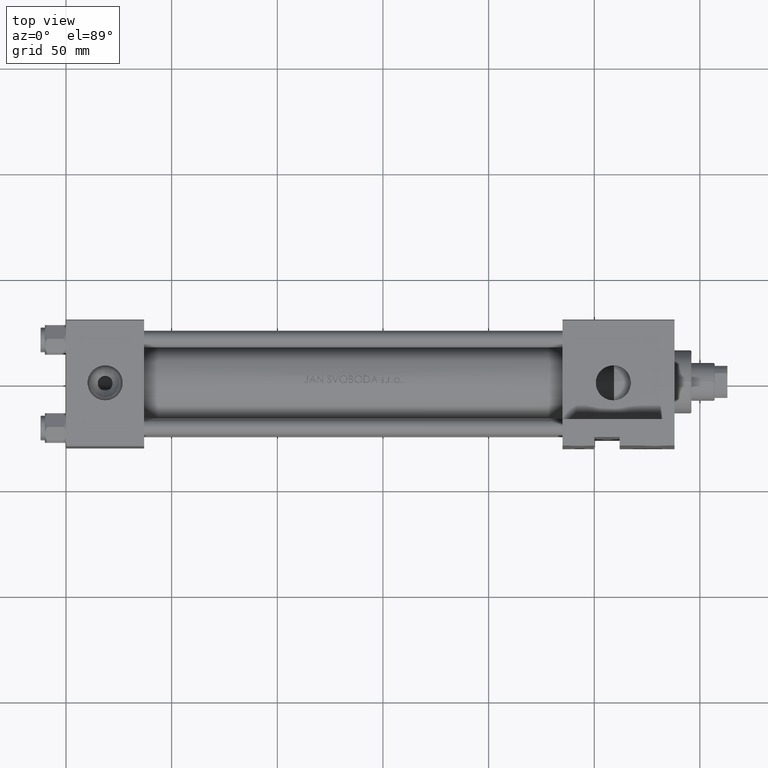
[diagram: clean part render]
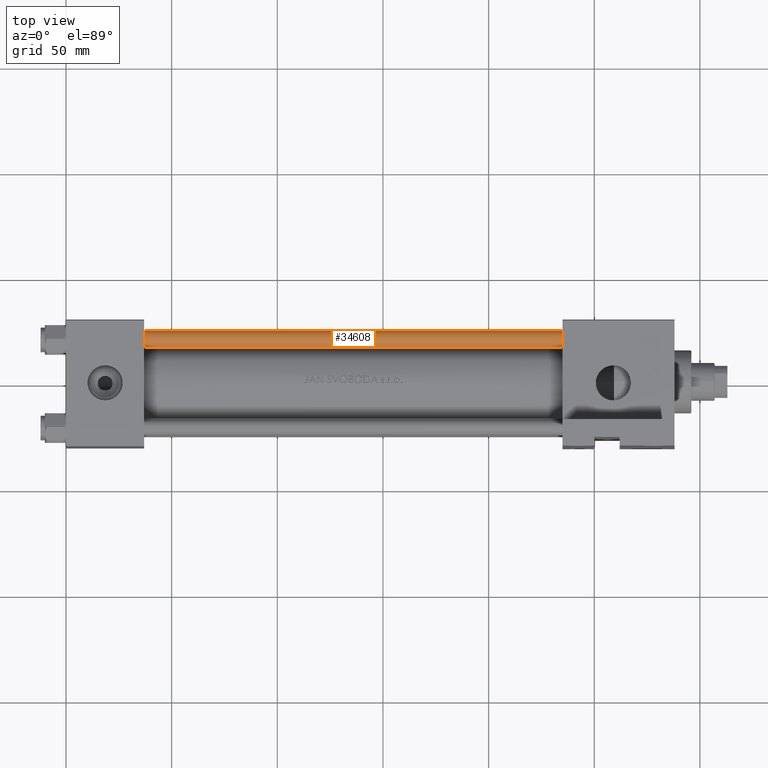
[diagram: same view with one face highlighted and labeled with its STEP entity id]
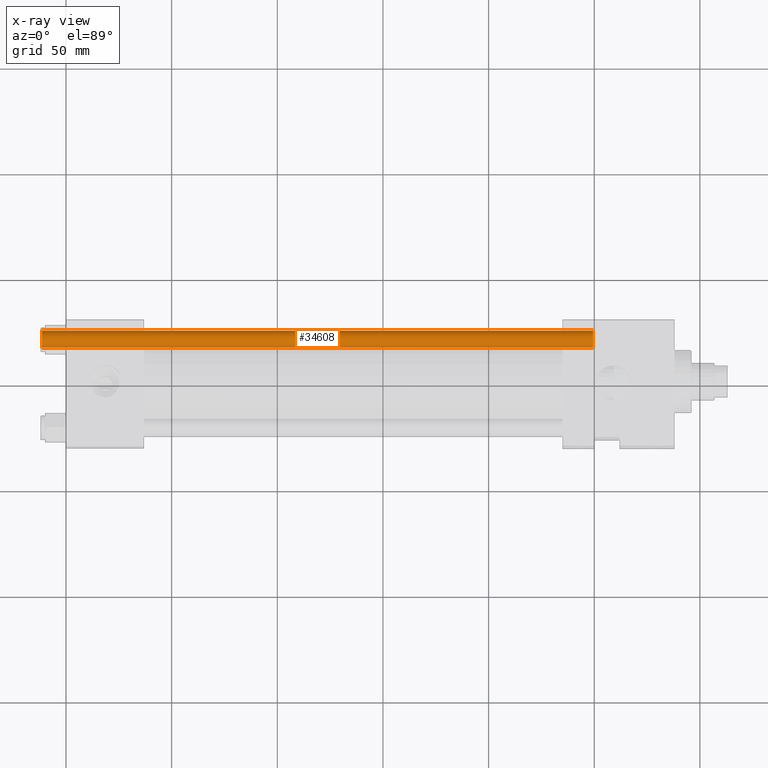
[diagram: x-ray of the same camera — body ghosted, the highlighted face saturated]
A machine part, top view. The second image highlights one B-rep face of the part: STEP entity #34608.
The next image is the same camera in x-ray: the body ghosted, the highlighted face saturated — about 0% of this face is hidden behind the body in this view.
In plain terms, the highlighted cylindrical surface (edge-blend (fillet) strip) has radius 4 mm, axis along (1, -0, 0).
Its self-contained STEP definition (entity closure, byte-faithful):
#402 = EDGE_CURVE ( 'NONE', #30187, #19255, #19753, .T. ) ;
#1052 = DIRECTION ( 'NONE',  ( 1.000000000000000000, 0.000000000000000000, 0.000000000000000000 ) ) ;
#3127 = CARTESIAN_POINT ( 'NONE',  ( 4.000000000000000000, 4.898587196589412829E-16, 261.5000000000000000 ) ) ;
#4140 = DIRECTION ( 'NONE',  ( -0.000000000000000000, -0.000000000000000000, 1.000000000000000000 ) ) ;
#4757 = CARTESIAN_POINT ( 'NONE',  ( 0.000000000000000000, 0.000000000000000000, 261.5000000000000000 ) ) ;
#5008 = VERTEX_POINT ( 'NONE', #26827 ) ;
#6126 = DIRECTION ( 'NONE',  ( -1.000000000000000000, 0.000000000000000000, 0.000000000000000000 ) ) ;
#6834 = LINE ( 'NONE', #21864, #14240 ) ;
#7954 = ORIENTED_EDGE ( 'NONE', *, *, #20651, .T. ) ;
#8916 = ORIENTED_EDGE ( 'NONE', *, *, #402, .F. ) ;
#9171 = AXIS2_PLACEMENT_3D ( 'NONE', #37938, #4140, #23377 ) ;
#12328 = CARTESIAN_POINT ( 'NONE',  ( 4.000000000000000000, 4.898587196589412829E-16, 0.5000000000000559552 ) ) ;
#13538 = FACE_OUTER_BOUND ( 'NONE', #16314, .T. ) ;
#13633 = ORIENTED_EDGE ( 'NONE', *, *, #33531, .T. ) ;
#14240 = VECTOR ( 'NONE', #48725, 1000.000000000000000 ) ;
#16048 = VECTOR ( 'NONE', #37535, 1000.000000000000000 ) ;
#16314 = EDGE_LOOP ( 'NONE', ( #8916, #25467, #13633, #7954 ) ) ;
#16983 = DIRECTION ( 'NONE',  ( -0.000000000000000000, -0.000000000000000000, -1.000000000000000000 ) ) ;
#19255 = VERTEX_POINT ( 'NONE', #12328 ) ;
#19753 = LINE ( 'NONE', #30137, #16048 ) ;
#20651 = EDGE_CURVE ( 'NONE', #5008, #19255, #28880, .T. ) ;
#21738 = AXIS2_PLACEMENT_3D ( 'NONE', #43837, #16983, #6126 ) ;
#21864 = CARTESIAN_POINT ( 'NONE',  ( -4.000000000000000000, 0.000000000000000000, 262.0000000000000000 ) ) ;
#23377 = DIRECTION ( 'NONE',  ( 1.000000000000000000, 0.000000000000000000, 0.000000000000000000 ) ) ;
#23747 = DIRECTION ( 'NONE',  ( 0.000000000000000000, 0.000000000000000000, -1.000000000000000000 ) ) ;
#25183 = AXIS2_PLACEMENT_3D ( 'NONE', #4757, #23747, #1052 ) ;
#25467 = ORIENTED_EDGE ( 'NONE', *, *, #28518, .T. ) ;
#26827 = CARTESIAN_POINT ( 'NONE',  ( -4.000000000000000000, 0.000000000000000000, 0.5000000000000559552 ) ) ;
#27809 = CARTESIAN_POINT ( 'NONE',  ( -4.000000000000000000, 0.000000000000000000, 261.5000000000000000 ) ) ;
#28095 = CYLINDRICAL_SURFACE ( 'NONE', #21738, 4.000000000000000000 ) ;
#28518 = EDGE_CURVE ( 'NONE', #30187, #47770, #37790, .T. ) ;
#28880 = CIRCLE ( 'NONE', #9171, 4.000000000000000000 ) ;
#30137 = CARTESIAN_POINT ( 'NONE',  ( 4.000000000000000000, 4.898587196589412829E-16, 262.0000000000000000 ) ) ;
#30187 = VERTEX_POINT ( 'NONE', #3127 ) ;
#33531 = EDGE_CURVE ( 'NONE', #47770, #5008, #6834, .T. ) ;
#34608 = ADVANCED_FACE ( 'NONE', ( #13538 ), #28095, .T. ) ;
#37535 = DIRECTION ( 'NONE',  ( -0.000000000000000000, -0.000000000000000000, -1.000000000000000000 ) ) ;
#37790 = CIRCLE ( 'NONE', #25183, 4.000000000000000000 ) ;
#37938 = CARTESIAN_POINT ( 'NONE',  ( 0.000000000000000000, 0.000000000000000000, 0.5000000000000559552 ) ) ;
#43837 = CARTESIAN_POINT ( 'NONE',  ( 0.000000000000000000, 0.000000000000000000, 262.0000000000000000 ) ) ;
#47770 = VERTEX_POINT ( 'NONE', #27809 ) ;
#48725 = DIRECTION ( 'NONE',  ( -0.000000000000000000, -0.000000000000000000, -1.000000000000000000 ) ) ;